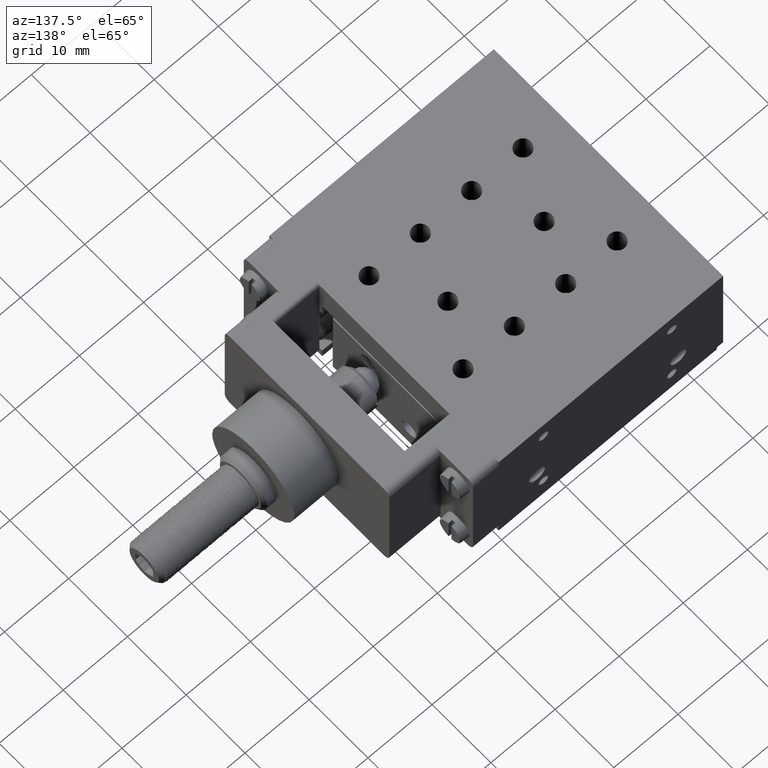
[diagram: clean part render]
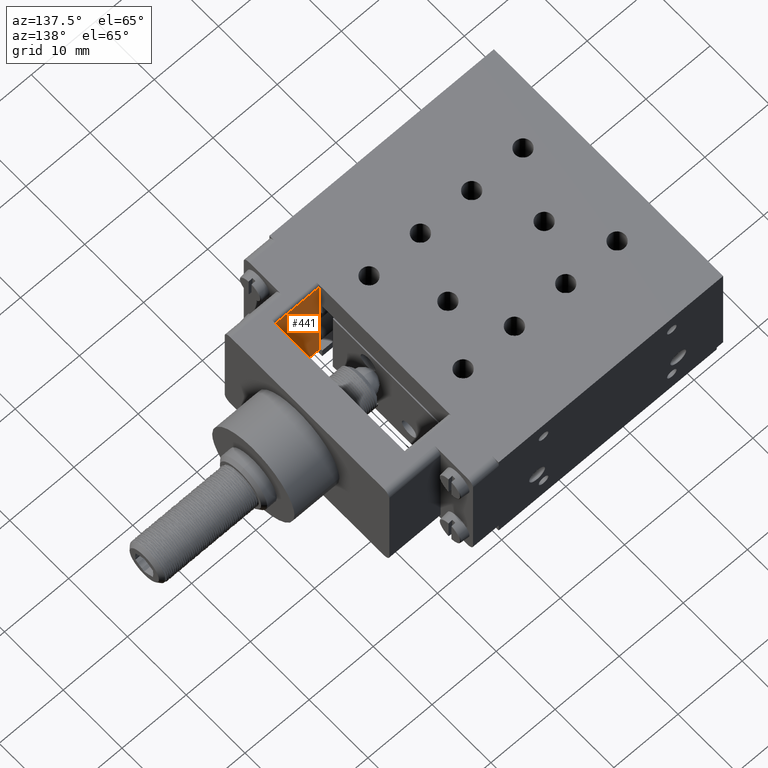
[diagram: same view with one face highlighted and labeled with its STEP entity id]
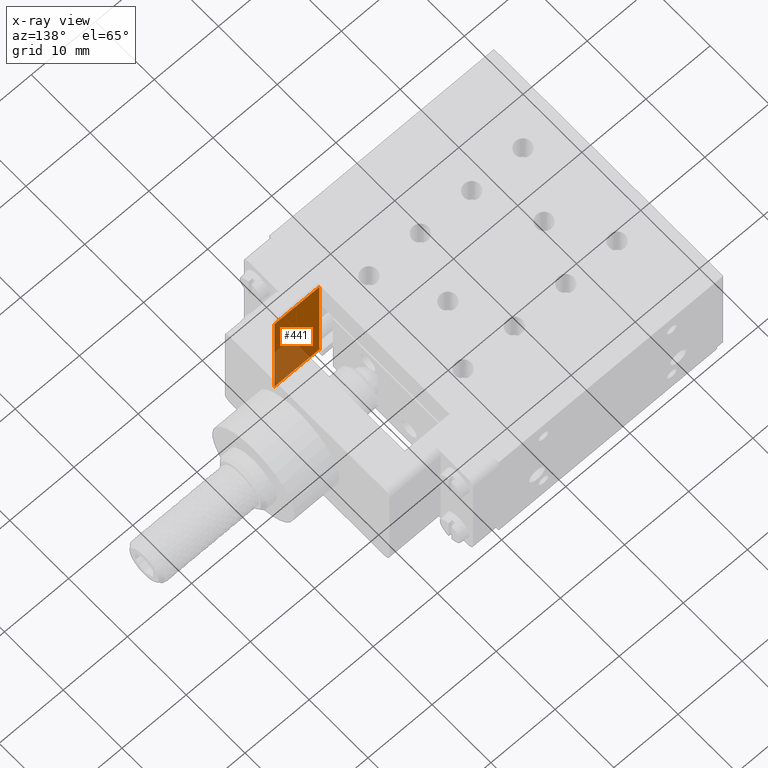
[diagram: x-ray of the same camera — body ghosted, the highlighted face saturated]
A machine part, auxiliary view. The second image highlights one B-rep face of the part: STEP entity #441.
The next image is the same camera in x-ray: the body ghosted, the highlighted face saturated — about 32% of this face is hidden behind the body in this view.
In plain terms, the highlighted planar face has unit normal (0, 1, 0).
Its self-contained STEP definition (entity closure, byte-faithful):
#441=ADVANCED_FACE('',(#1027),#8571,.T.);
#1027=FACE_OUTER_BOUND('',#1604,.T.);
#1604=EDGE_LOOP('',(#4052,#4053,#4054,#4055,#4056,#4057));
#4052=ORIENTED_EDGE('',*,*,#5411,.T.);
#4053=ORIENTED_EDGE('',*,*,#5543,.F.);
#4054=ORIENTED_EDGE('',*,*,#5407,.T.);
#4055=ORIENTED_EDGE('',*,*,#5607,.F.);
#4056=ORIENTED_EDGE('',*,*,#5608,.F.);
#4057=ORIENTED_EDGE('',*,*,#5597,.F.);
#5407=EDGE_CURVE('',#7806,#7805,#7046,.T.);
#5411=EDGE_CURVE('',#7809,#7810,#7050,.T.);
#5543=EDGE_CURVE('',#7806,#7810,#7150,.T.);
#5597=EDGE_CURVE('',#7809,#7957,#7187,.T.);
#5607=EDGE_CURVE('',#7961,#7805,#7192,.T.);
#5608=EDGE_CURVE('',#7957,#7961,#7193,.T.);
#7046=B_SPLINE_CURVE_WITH_KNOTS('',1,(#41930,#41931),.UNSPECIFIED.,.F.,
 .F.,(2,2),(-6.5000000000001,0.),.UNSPECIFIED.);
#7050=B_SPLINE_CURVE_WITH_KNOTS('',1,(#41938,#41939),.UNSPECIFIED.,.F.,
 .F.,(2,2),(-0.4999999999999,0.),.UNSPECIFIED.);
#7150=B_SPLINE_CURVE_WITH_KNOTS('',1,(#42498,#42499),.UNSPECIFIED.,.F.,
 .F.,(2,2),(0.,9.99999999999999),.UNSPECIFIED.);
#7187=B_SPLINE_CURVE_WITH_KNOTS('',1,(#42623,#42624),.UNSPECIFIED.,.F.,
 .F.,(2,2),(0.,7.),.UNSPECIFIED.);
#7192=B_SPLINE_CURVE_WITH_KNOTS('',1,(#42648,#42649),.UNSPECIFIED.,.F.,
 .F.,(2,2),(0.,7.),.UNSPECIFIED.);
#7193=B_SPLINE_CURVE_WITH_KNOTS('',1,(#42650,#42651),.UNSPECIFIED.,.F.,
 .F.,(2,2),(-17.,0.),.UNSPECIFIED.);
#7805=VERTEX_POINT('',#28671);
#7806=VERTEX_POINT('',#28672);
#7809=VERTEX_POINT('',#28675);
#7810=VERTEX_POINT('',#28676);
#7957=VERTEX_POINT('',#28823);
#7961=VERTEX_POINT('',#28827);
#8571=PLANE('',#8948);
#8948=AXIS2_PLACEMENT_3D('',#27614,#9349,$);
#9349=DIRECTION('',(0.,1.,0.));
#27614=CARTESIAN_POINT('',(-0.819999189241805,-10.9999999944686,20.3200455395508));
#28671=CARTESIAN_POINT('',(8.107587521252E-7,-10.9999999944686,18.5000455395508));
#28672=CARTESIAN_POINT('',(8.10758247639858E-7,-10.9999999944685,12.0000455395507));
#28675=CARTESIAN_POINT('',(8.10758652649217E-7,-10.9999999944684,1.50004553955079));
#28676=CARTESIAN_POINT('',(8.10758247639858E-7,-10.9999999944685,2.00004553955069));
#28823=CARTESIAN_POINT('',(7.00000081075865,-10.9999999944685,1.50004553955078));
#28827=CARTESIAN_POINT('',(7.00000081075875,-10.9999999944686,18.5000455395508));
#41930=CARTESIAN_POINT('',(8.10758247639858E-7,-10.9999999944685,12.0000455395507));
#41931=CARTESIAN_POINT('',(8.107587521252E-7,-10.9999999944686,18.5000455395508));
#41938=CARTESIAN_POINT('',(8.10758652649217E-7,-10.9999999944684,1.50004553955079));
#41939=CARTESIAN_POINT('',(8.10758247639858E-7,-10.9999999944685,2.00004553955069));
#42498=CARTESIAN_POINT('',(8.10758247639858E-7,-10.9999999944685,12.0000455395507));
#42499=CARTESIAN_POINT('',(8.10758247639858E-7,-10.9999999944685,2.00004553955069));
#42623=CARTESIAN_POINT('',(8.10758652649217E-7,-10.9999999944684,1.50004553955079));
#42624=CARTESIAN_POINT('',(7.00000081075865,-10.9999999944685,1.50004553955078));
#42648=CARTESIAN_POINT('',(7.00000081075875,-10.9999999944686,18.5000455395508));
#42649=CARTESIAN_POINT('',(8.107587521252E-7,-10.9999999944686,18.5000455395508));
#42650=CARTESIAN_POINT('',(7.00000081075865,-10.9999999944685,1.50004553955078));
#42651=CARTESIAN_POINT('',(7.00000081075875,-10.9999999944686,18.5000455395508));